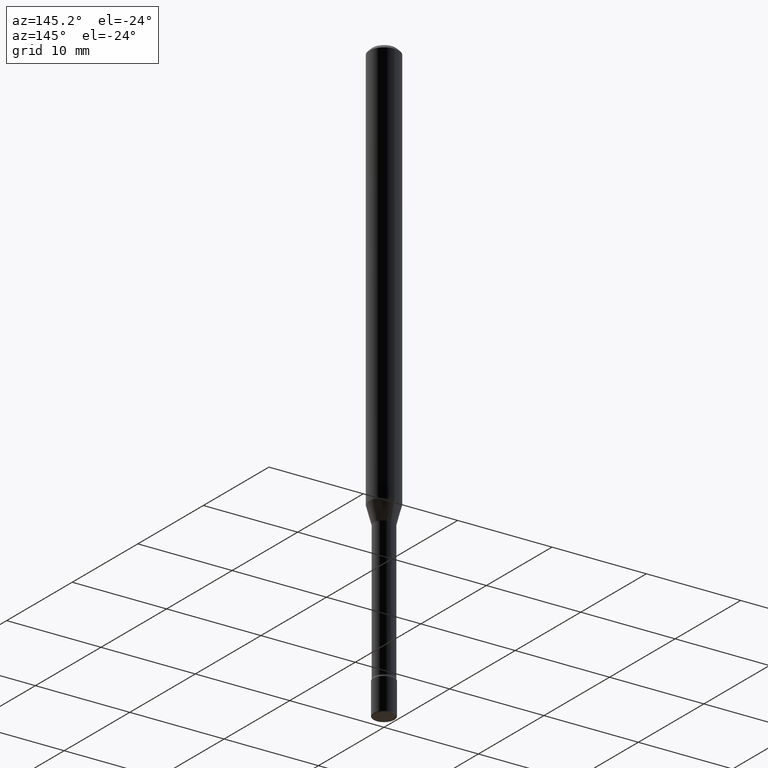
[diagram: clean part render]
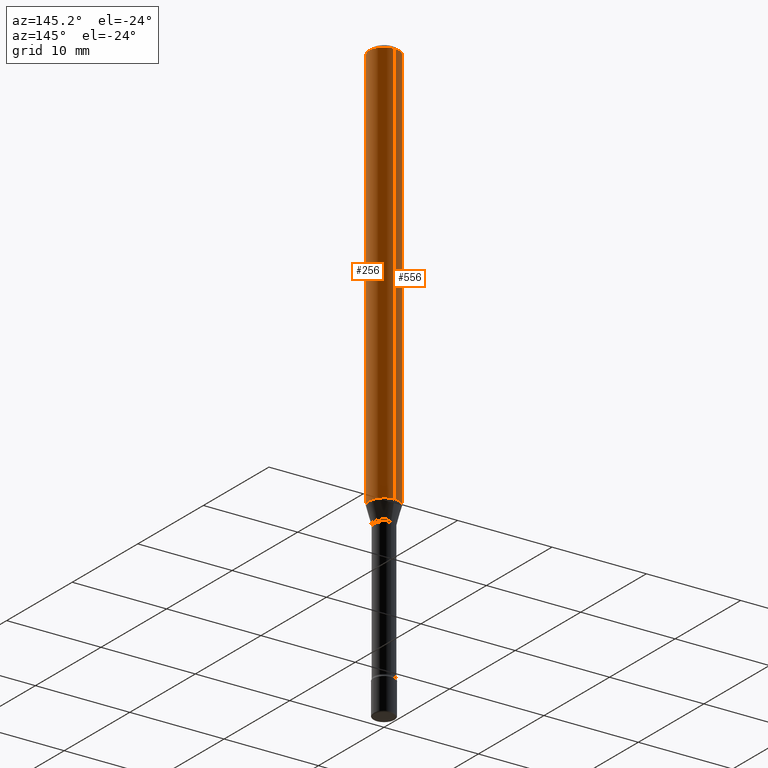
[diagram: same view with one multi-face feature highlighted, each face labeled with its STEP entity id]
A machine part, auxiliary view. The highlighted faces form ONE feature: a constant-radius fillet chain: 2 tangent blend faces with common blend radius 1.5875 mm. The faces share edges in the B-rep.
Their STEP definitions:
[1] entity #256 (Cylinder):
#12 = CARTESIAN_POINT ( 'NONE',  ( 4.168479812603529288E-29, -5.951761990696706903E-15, -1.704612573687108945 ) ) ;
#14 = DIRECTION ( 'NONE',  ( -2.445411864812793917E-29, 3.491562882129241838E-15, 1.000000000000000000 ) ) ;
#15 = EDGE_CURVE ( 'NONE', #215, #368, #453, .T. ) ;
#45 = EDGE_LOOP ( 'NONE', ( #125, #258, #187, #399 ) ) ;
#67 = DIRECTION ( 'NONE',  ( -2.445411864812793917E-29, 3.491562882129241838E-15, 1.000000000000000000 ) ) ;
#77 = VECTOR ( 'NONE', #322, 39.37007874015748143 ) ;
#91 = EDGE_CURVE ( 'NONE', #215, #304, #103, .T. ) ;
#95 = VERTEX_POINT ( 'NONE', #545 ) ;
#96 = CIRCLE ( 'NONE', #141, 0.06250000000000000000 ) ;
#103 = CIRCLE ( 'NONE', #271, 0.06250000000000000000 ) ;
#124 = CARTESIAN_POINT ( 'NONE',  ( 4.440892098501044258E-16, 0.06249999999999408112, -1.704612573687109167 ) ) ;
#125 = ORIENTED_EDGE ( 'NONE', *, *, #91, .T. ) ;
#131 = AXIS2_PLACEMENT_3D ( 'NONE', #509, #67, #245 ) ;
#141 = AXIS2_PLACEMENT_3D ( 'NONE', #275, #182, #449 ) ;
#182 = DIRECTION ( 'NONE',  ( -2.445411864812793917E-29, 3.491562882129241838E-15, 1.000000000000000000 ) ) ;
#187 = ORIENTED_EDGE ( 'NONE', *, *, #441, .F. ) ;
#215 = VERTEX_POINT ( 'NONE', #292 ) ;
#245 = DIRECTION ( 'NONE',  ( -6.982962677686265922E-15, -1.000000000000000000, 3.491562882129242627E-15 ) ) ;
#256 = ADVANCED_FACE ( 'NONE', ( #465 ), #333, .T. ) ;
#258 = ORIENTED_EDGE ( 'NONE', *, *, #510, .T. ) ;
#271 = AXIS2_PLACEMENT_3D ( 'NONE', #12, #278, #321 ) ;
#275 = CARTESIAN_POINT ( 'NONE',  ( 3.668117797219197392E-31, -5.237344323193873357E-17, -0.01500000000000002720 ) ) ;
#278 = DIRECTION ( 'NONE',  ( -2.445411864812793917E-29, 3.491562882129241838E-15, 1.000000000000000000 ) ) ;
#292 = CARTESIAN_POINT ( 'NONE',  ( -4.364351673553497119E-16, -0.06250000000000591194, -1.704612573687108723 ) ) ;
#304 = VERTEX_POINT ( 'NONE', #124 ) ;
#321 = DIRECTION ( 'NONE',  ( -6.982962677686265922E-15, -1.000000000000000000, 4.370956789862821150E-15 ) ) ;
#322 = DIRECTION ( 'NONE',  ( -2.445411864812793917E-29, 3.491562882129241838E-15, 1.000000000000000000 ) ) ;
#327 = VECTOR ( 'NONE', #14, 39.37007874015748143 ) ;
#333 = CYLINDRICAL_SURFACE ( 'NONE', #131, 0.06250000000000000000 ) ;
#368 = VERTEX_POINT ( 'NONE', #530 ) ;
#399 = ORIENTED_EDGE ( 'NONE', *, *, #15, .F. ) ;
#403 = CARTESIAN_POINT ( 'NONE',  ( 4.440892098500625669E-16, 0.06250000000000000000, 2.598507187581684484E-16 ) ) ;
#441 = EDGE_CURVE ( 'NONE', #368, #95, #96, .T. ) ;
#443 = LINE ( 'NONE', #403, #77 ) ;
#449 = DIRECTION ( 'NONE',  ( -6.982962677686265922E-15, -1.000000000000000000, 3.483106191921935554E-15 ) ) ;
#453 = LINE ( 'NONE', #538, #327 ) ;
#465 = FACE_OUTER_BOUND ( 'NONE', #45, .T. ) ;
#509 = CARTESIAN_POINT ( 'NONE',  ( -1.169113584055446105E-44, 1.669184350826100908E-30, 4.780733988912460139E-16 ) ) ;
#510 = EDGE_CURVE ( 'NONE', #304, #95, #443, .T. ) ;
#530 = CARTESIAN_POINT ( 'NONE',  ( -4.364351673553912750E-16, -0.06250000000000005551, -0.01499999999999981036 ) ) ;
#538 = CARTESIAN_POINT ( 'NONE',  ( -4.364351673553916201E-16, -0.06250000000000000000, 6.962960790243237274E-16 ) ) ;
#545 = CARTESIAN_POINT ( 'NONE',  ( 4.440892098501046230E-16, 0.06249999999999995143, -0.01500000000000024578 ) ) ;
[2] entity #556 (Cylinder):
#14 = DIRECTION ( 'NONE',  ( -2.445411864812793917E-29, 3.491562882129241838E-15, 1.000000000000000000 ) ) ;
#15 = EDGE_CURVE ( 'NONE', #215, #368, #453, .T. ) ;
#17 = AXIS2_PLACEMENT_3D ( 'NONE', #130, #395, #134 ) ;
#22 = ORIENTED_EDGE ( 'NONE', *, *, #510, .F. ) ;
#46 = FACE_OUTER_BOUND ( 'NONE', #520, .T. ) ;
#52 = DIRECTION ( 'NONE',  ( -6.982962677686265922E-15, -1.000000000000000000, 4.370956789862821150E-15 ) ) ;
#55 = ORIENTED_EDGE ( 'NONE', *, *, #15, .T. ) ;
#77 = VECTOR ( 'NONE', #322, 39.37007874015748143 ) ;
#88 = CARTESIAN_POINT ( 'NONE',  ( 4.168479812603529288E-29, -5.951761990696706903E-15, -1.704612573687108945 ) ) ;
#95 = VERTEX_POINT ( 'NONE', #545 ) ;
#102 = DIRECTION ( 'NONE',  ( -6.982962677686265922E-15, -1.000000000000000000, 3.483106191921935554E-15 ) ) ;
#124 = CARTESIAN_POINT ( 'NONE',  ( 4.440892098501044258E-16, 0.06249999999999408112, -1.704612573687109167 ) ) ;
#130 = CARTESIAN_POINT ( 'NONE',  ( -1.169113584055446105E-44, 1.669184350826100908E-30, 4.780733988912460139E-16 ) ) ;
#134 = DIRECTION ( 'NONE',  ( -6.982962677686265922E-15, -1.000000000000000000, 3.491562882129242627E-15 ) ) ;
#165 = ORIENTED_EDGE ( 'NONE', *, *, #507, .T. ) ;
#179 = CIRCLE ( 'NONE', #328, 0.06250000000000000000 ) ;
#215 = VERTEX_POINT ( 'NONE', #292 ) ;
#216 = EDGE_CURVE ( 'NONE', #95, #368, #345, .T. ) ;
#223 = CYLINDRICAL_SURFACE ( 'NONE', #17, 0.06250000000000000000 ) ;
#265 = DIRECTION ( 'NONE',  ( -2.445411864812793917E-29, 3.491562882129241838E-15, 1.000000000000000000 ) ) ;
#292 = CARTESIAN_POINT ( 'NONE',  ( -4.364351673553497119E-16, -0.06250000000000591194, -1.704612573687108723 ) ) ;
#304 = VERTEX_POINT ( 'NONE', #124 ) ;
#322 = DIRECTION ( 'NONE',  ( -2.445411864812793917E-29, 3.491562882129241838E-15, 1.000000000000000000 ) ) ;
#327 = VECTOR ( 'NONE', #14, 39.37007874015748143 ) ;
#328 = AXIS2_PLACEMENT_3D ( 'NONE', #88, #265, #52 ) ;
#345 = CIRCLE ( 'NONE', #561, 0.06250000000000000000 ) ;
#368 = VERTEX_POINT ( 'NONE', #530 ) ;
#395 = DIRECTION ( 'NONE',  ( -2.445411864812793917E-29, 3.491562882129241838E-15, 1.000000000000000000 ) ) ;
#403 = CARTESIAN_POINT ( 'NONE',  ( 4.440892098500625669E-16, 0.06250000000000000000, 2.598507187581684484E-16 ) ) ;
#433 = ORIENTED_EDGE ( 'NONE', *, *, #216, .F. ) ;
#443 = LINE ( 'NONE', #403, #77 ) ;
#453 = LINE ( 'NONE', #538, #327 ) ;
#463 = DIRECTION ( 'NONE',  ( -2.445411864812793917E-29, 3.491562882129241838E-15, 1.000000000000000000 ) ) ;
#507 = EDGE_CURVE ( 'NONE', #304, #215, #179, .T. ) ;
#510 = EDGE_CURVE ( 'NONE', #304, #95, #443, .T. ) ;
#520 = EDGE_LOOP ( 'NONE', ( #22, #165, #55, #433 ) ) ;
#530 = CARTESIAN_POINT ( 'NONE',  ( -4.364351673553912750E-16, -0.06250000000000005551, -0.01499999999999981036 ) ) ;
#538 = CARTESIAN_POINT ( 'NONE',  ( -4.364351673553916201E-16, -0.06250000000000000000, 6.962960790243237274E-16 ) ) ;
#545 = CARTESIAN_POINT ( 'NONE',  ( 4.440892098501046230E-16, 0.06249999999999995143, -0.01500000000000024578 ) ) ;
#552 = CARTESIAN_POINT ( 'NONE',  ( 3.668117797219197392E-31, -5.237344323193873357E-17, -0.01500000000000002720 ) ) ;
#556 = ADVANCED_FACE ( 'NONE', ( #46 ), #223, .T. ) ;
#561 = AXIS2_PLACEMENT_3D ( 'NONE', #552, #463, #102 ) ;